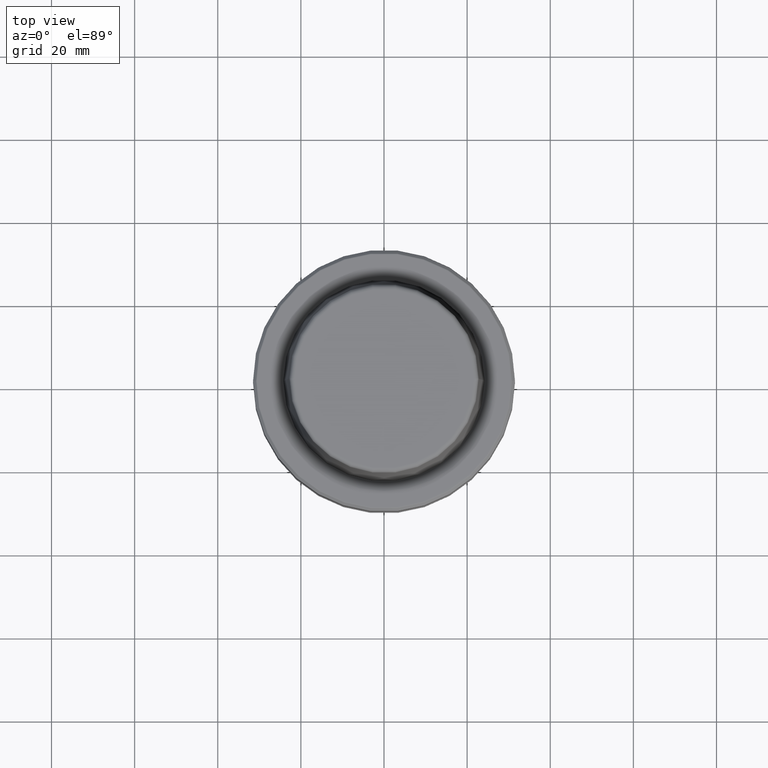
[diagram: clean part render]
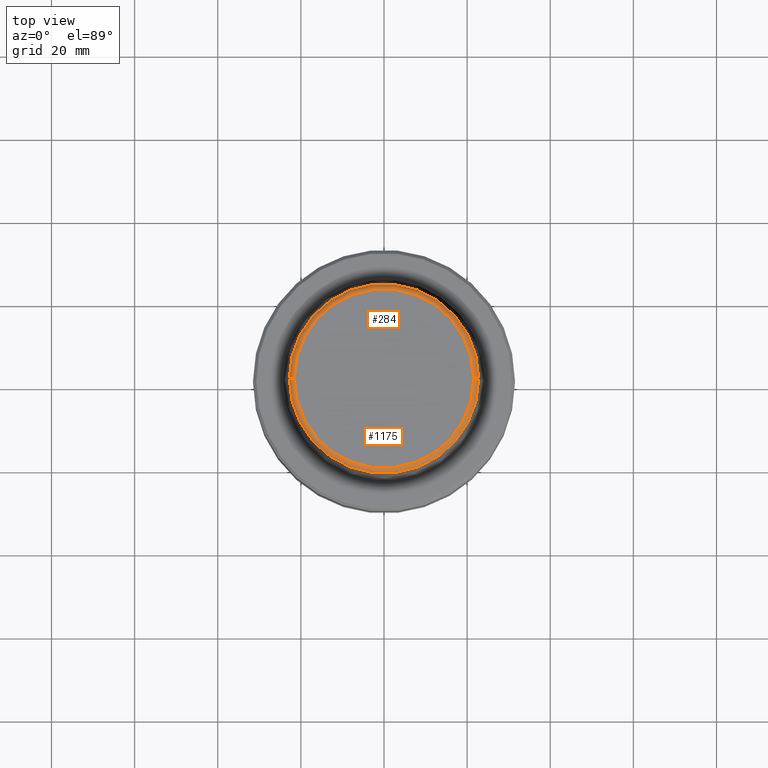
[diagram: same view with one multi-face feature highlighted, each face labeled with its STEP entity id]
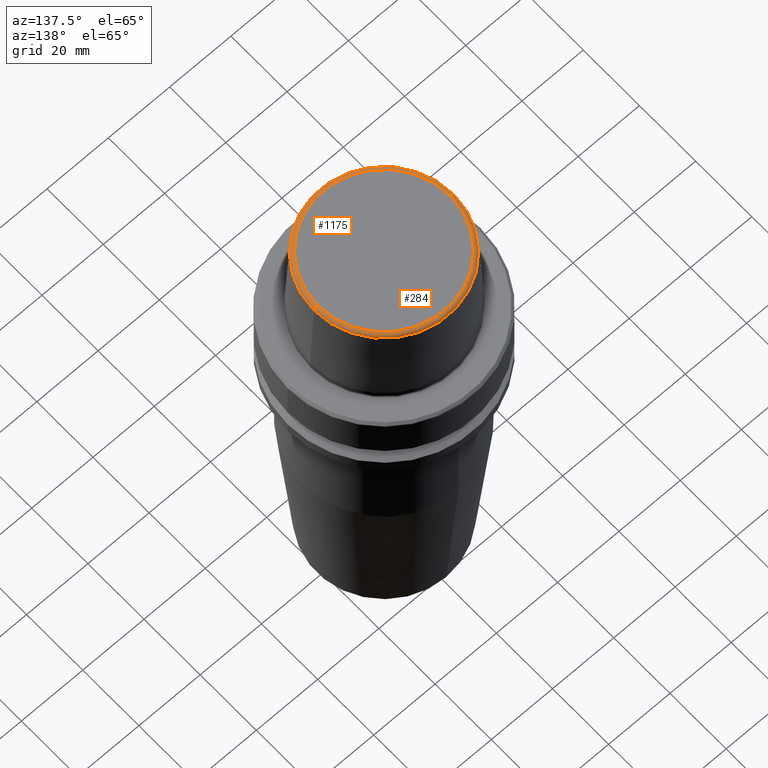
[diagram: same view with one multi-face feature highlighted, each face labeled with its STEP entity id]
A machine part, top view. The highlighted faces form ONE feature: a constant-radius fillet chain: 2 tangent blend faces with common blend radius 1.2 mm. The faces share edges in the B-rep.
A second angle (auxiliary view) of the same feature is appended — it is thin or edge-on in the first view.
Their STEP definitions:
[1] entity #284 (Torus):
#22 = VERTEX_POINT ( 'NONE', #314 ) ;
#39 = CARTESIAN_POINT ( 'NONE',  ( 0.0000000000000000000, 0.0000000000000000000, 31.89999999999999900 ) ) ;
#42 = FACE_OUTER_BOUND ( 'NONE', #413, .T. ) ;
#74 = EDGE_CURVE ( 'NONE', #22, #1219, #1216, .T. ) ;
#106 = TOROIDAL_SURFACE ( 'NONE', #1125, 21.58108272732117100, 1.200000000000003100 ) ;
#125 = ORIENTED_EDGE ( 'NONE', *, *, #74, .T. ) ;
#152 = CARTESIAN_POINT ( 'NONE',  ( 0.0000000000000000000, 0.0000000000000000000, 30.76004333261571900 ) ) ;
#160 = DIRECTION ( 'NONE',  ( 1.000000000000000000, 0.0000000000000000000, 0.0000000000000000000 ) ) ;
#167 = CARTESIAN_POINT ( 'NONE',  ( 0.0000000000000000000, 0.0000000000000000000, 30.69999999999999200 ) ) ;
#191 = AXIS2_PLACEMENT_3D ( 'NONE', #318, #821, #1101 ) ;
#238 = EDGE_CURVE ( 'NONE', #324, #340, #1214, .T. ) ;
#284 = ADVANCED_FACE ( 'NONE', ( #42 ), #106, .T. ) ;
#314 = CARTESIAN_POINT ( 'NONE',  ( 22.77957961851797100, 2.876386432489616700E-015, 30.76004333261571900 ) ) ;
#318 = CARTESIAN_POINT ( 'NONE',  ( 21.58108272732117100, 0.0000000000000000000, 30.69999999999999200 ) ) ;
#324 = VERTEX_POINT ( 'NONE', #1225 ) ;
#340 = VERTEX_POINT ( 'NONE', #846 ) ;
#371 = EDGE_CURVE ( 'NONE', #22, #324, #483, .T. ) ;
#392 = DIRECTION ( 'NONE',  ( -0.0000000000000000000, -0.0000000000000000000, 1.000000000000000000 ) ) ;
#413 = EDGE_LOOP ( 'NONE', ( #125, #892, #1163, #505 ) ) ;
#444 = AXIS2_PLACEMENT_3D ( 'NONE', #493, #690, #788 ) ;
#451 = EDGE_CURVE ( 'NONE', #1219, #340, #867, .T. ) ;
#483 = CIRCLE ( 'NONE', #191, 1.200000000000003100 ) ;
#493 = CARTESIAN_POINT ( 'NONE',  ( -21.58108272732117100, 2.642920388414810300E-015, 30.69999999999999200 ) ) ;
#505 = ORIENTED_EDGE ( 'NONE', *, *, #371, .F. ) ;
#690 = DIRECTION ( 'NONE',  ( 1.224646799147353200E-016, 1.000000000000000000, 0.0000000000000000000 ) ) ;
#753 = DIRECTION ( 'NONE',  ( -0.0000000000000000000, -0.0000000000000000000, 1.000000000000000000 ) ) ;
#767 = DIRECTION ( 'NONE',  ( -0.0000000000000000000, -0.0000000000000000000, 1.000000000000000000 ) ) ;
#788 = DIRECTION ( 'NONE',  ( -1.000000000000000000, 1.224646799147353200E-016, 0.0000000000000000000 ) ) ;
#814 = AXIS2_PLACEMENT_3D ( 'NONE', #39, #767, #160 ) ;
#819 = CARTESIAN_POINT ( 'NONE',  ( -22.77957961851797100, 0.0000000000000000000, 30.76004333261571900 ) ) ;
#821 = DIRECTION ( 'NONE',  ( 0.0000000000000000000, -1.000000000000000000, 0.0000000000000000000 ) ) ;
#846 = CARTESIAN_POINT ( 'NONE',  ( -21.58108272732117100, 2.716307157494421400E-015, 31.89999999999999900 ) ) ;
#867 = CIRCLE ( 'NONE', #444, 1.200000000000003100 ) ;
#892 = ORIENTED_EDGE ( 'NONE', *, *, #451, .T. ) ;
#905 = DIRECTION ( 'NONE',  ( 1.000000000000000000, 0.0000000000000000000, 0.0000000000000000000 ) ) ;
#1022 = AXIS2_PLACEMENT_3D ( 'NONE', #152, #753, #905 ) ;
#1027 = DIRECTION ( 'NONE',  ( 1.000000000000000000, 0.0000000000000000000, 0.0000000000000000000 ) ) ;
#1101 = DIRECTION ( 'NONE',  ( 0.0000000000000000000, 0.0000000000000000000, -1.000000000000000000 ) ) ;
#1125 = AXIS2_PLACEMENT_3D ( 'NONE', #167, #392, #1027 ) ;
#1163 = ORIENTED_EDGE ( 'NONE', *, *, #238, .F. ) ;
#1214 = CIRCLE ( 'NONE', #814, 21.58108272732117100 ) ;
#1216 = CIRCLE ( 'NONE', #1022, 22.77957961851797100 ) ;
#1219 = VERTEX_POINT ( 'NONE', #819 ) ;
#1225 = CARTESIAN_POINT ( 'NONE',  ( 21.58108272732117100, 0.0000000000000000000, 31.89999999999999900 ) ) ;
[2] entity #1175 (Torus):
#22 = VERTEX_POINT ( 'NONE', #314 ) ;
#78 = TOROIDAL_SURFACE ( 'NONE', #1073, 21.58108272732117100, 1.200000000000003100 ) ;
#190 = DIRECTION ( 'NONE',  ( -0.0000000000000000000, -0.0000000000000000000, 1.000000000000000000 ) ) ;
#191 = AXIS2_PLACEMENT_3D ( 'NONE', #318, #821, #1101 ) ;
#195 = DIRECTION ( 'NONE',  ( -0.0000000000000000000, -0.0000000000000000000, 1.000000000000000000 ) ) ;
#237 = CARTESIAN_POINT ( 'NONE',  ( 0.0000000000000000000, 0.0000000000000000000, 30.76004333261571900 ) ) ;
#257 = ORIENTED_EDGE ( 'NONE', *, *, #1081, .F. ) ;
#312 = ORIENTED_EDGE ( 'NONE', *, *, #451, .F. ) ;
#314 = CARTESIAN_POINT ( 'NONE',  ( 22.77957961851797100, 2.876386432489616700E-015, 30.76004333261571900 ) ) ;
#318 = CARTESIAN_POINT ( 'NONE',  ( 21.58108272732117100, 0.0000000000000000000, 30.69999999999999200 ) ) ;
#323 = DIRECTION ( 'NONE',  ( 1.000000000000000000, 0.0000000000000000000, 0.0000000000000000000 ) ) ;
#324 = VERTEX_POINT ( 'NONE', #1225 ) ;
#340 = VERTEX_POINT ( 'NONE', #846 ) ;
#371 = EDGE_CURVE ( 'NONE', #22, #324, #483, .T. ) ;
#389 = AXIS2_PLACEMENT_3D ( 'NONE', #1041, #768, #1037 ) ;
#444 = AXIS2_PLACEMENT_3D ( 'NONE', #493, #690, #788 ) ;
#451 = EDGE_CURVE ( 'NONE', #1219, #340, #867, .T. ) ;
#483 = CIRCLE ( 'NONE', #191, 1.200000000000003100 ) ;
#489 = AXIS2_PLACEMENT_3D ( 'NONE', #237, #195, #593 ) ;
#493 = CARTESIAN_POINT ( 'NONE',  ( -21.58108272732117100, 2.642920388414810300E-015, 30.69999999999999200 ) ) ;
#508 = FACE_OUTER_BOUND ( 'NONE', #1018, .T. ) ;
#593 = DIRECTION ( 'NONE',  ( 1.000000000000000000, 0.0000000000000000000, 0.0000000000000000000 ) ) ;
#690 = DIRECTION ( 'NONE',  ( 1.224646799147353200E-016, 1.000000000000000000, 0.0000000000000000000 ) ) ;
#768 = DIRECTION ( 'NONE',  ( -0.0000000000000000000, -0.0000000000000000000, 1.000000000000000000 ) ) ;
#788 = DIRECTION ( 'NONE',  ( -1.000000000000000000, 1.224646799147353200E-016, 0.0000000000000000000 ) ) ;
#789 = CARTESIAN_POINT ( 'NONE',  ( 0.0000000000000000000, 0.0000000000000000000, 30.69999999999999200 ) ) ;
#790 = EDGE_CURVE ( 'NONE', #1219, #22, #1070, .T. ) ;
#819 = CARTESIAN_POINT ( 'NONE',  ( -22.77957961851797100, 0.0000000000000000000, 30.76004333261571900 ) ) ;
#821 = DIRECTION ( 'NONE',  ( 0.0000000000000000000, -1.000000000000000000, 0.0000000000000000000 ) ) ;
#846 = CARTESIAN_POINT ( 'NONE',  ( -21.58108272732117100, 2.716307157494421400E-015, 31.89999999999999900 ) ) ;
#867 = CIRCLE ( 'NONE', #444, 1.200000000000003100 ) ;
#917 = ORIENTED_EDGE ( 'NONE', *, *, #790, .T. ) ;
#1018 = EDGE_LOOP ( 'NONE', ( #312, #917, #1171, #257 ) ) ;
#1037 = DIRECTION ( 'NONE',  ( 1.000000000000000000, 0.0000000000000000000, 0.0000000000000000000 ) ) ;
#1041 = CARTESIAN_POINT ( 'NONE',  ( 0.0000000000000000000, 0.0000000000000000000, 31.89999999999999900 ) ) ;
#1070 = CIRCLE ( 'NONE', #489, 22.77957961851797100 ) ;
#1073 = AXIS2_PLACEMENT_3D ( 'NONE', #789, #190, #323 ) ;
#1081 = EDGE_CURVE ( 'NONE', #340, #324, #1084, .T. ) ;
#1084 = CIRCLE ( 'NONE', #389, 21.58108272732117100 ) ;
#1101 = DIRECTION ( 'NONE',  ( 0.0000000000000000000, 0.0000000000000000000, -1.000000000000000000 ) ) ;
#1171 = ORIENTED_EDGE ( 'NONE', *, *, #371, .T. ) ;
#1175 = ADVANCED_FACE ( 'NONE', ( #508 ), #78, .T. ) ;
#1219 = VERTEX_POINT ( 'NONE', #819 ) ;
#1225 = CARTESIAN_POINT ( 'NONE',  ( 21.58108272732117100, 0.0000000000000000000, 31.89999999999999900 ) ) ;